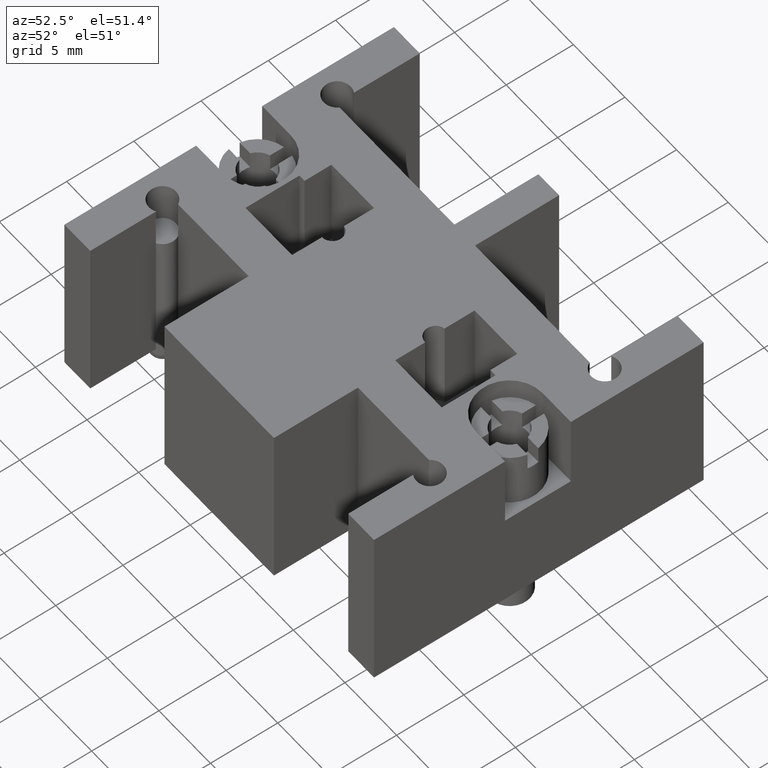
[diagram: clean part render]
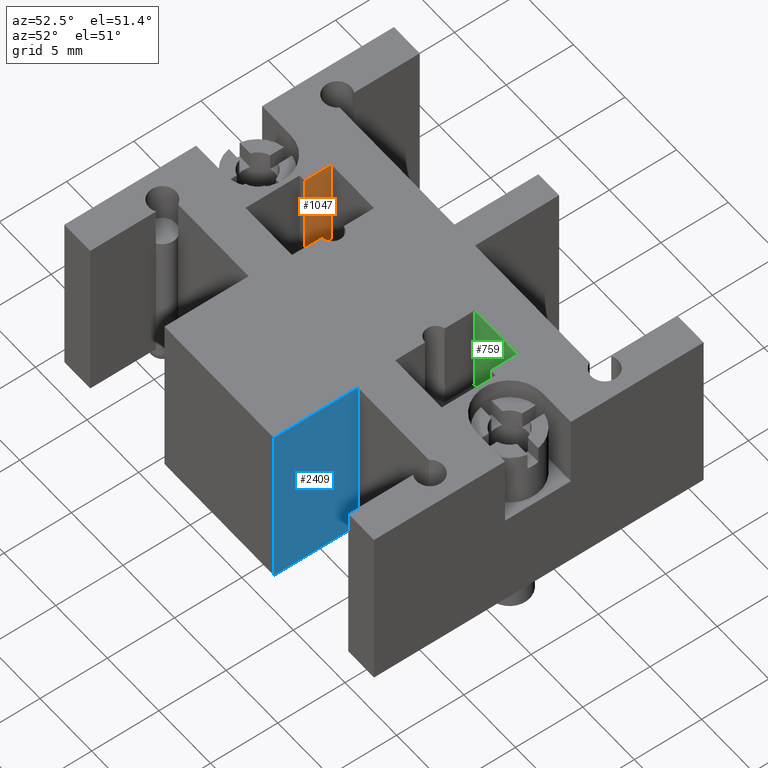
[diagram: same view with three faces highlighted in distinct colors, each labeled with its STEP entity id]
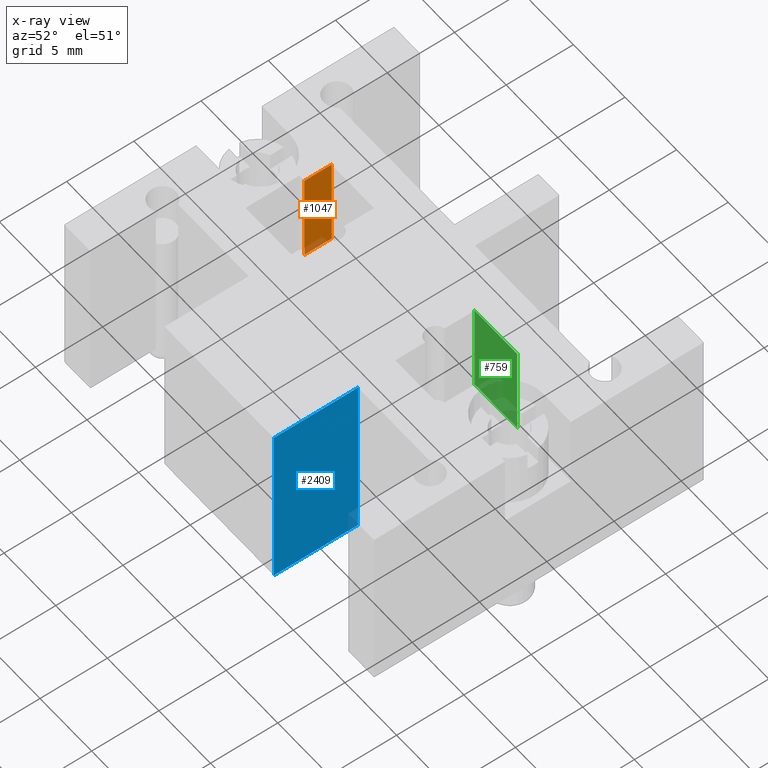
[diagram: x-ray of the same camera — body ghosted, the three highlighted faces saturated]
A machine part, auxiliary view with three faces highlighted in distinct colors.
The next image is the same camera in x-ray (body ghosted, the three faces saturated) — at least one of them is partly hidden behind the body in this view.
Their STEP definitions:

[orange] entity #1047 — the highlighted planar face has unit normal (-1, 0, 0).
#803=CARTESIAN_POINT('',(-19.052022867292344,6.614643525666462,6.000000000000002));
#804=VERTEX_POINT('',#803);
#813=CARTESIAN_POINT('',(-19.052022867292344,6.614643525666462,13.0));
#814=VERTEX_POINT('',#813);
#815=CARTESIAN_POINT('',(-19.052022867292344,6.614643525666462,13.0));
#816=DIRECTION('',(0.0,0.0,-1.0));
#817=VECTOR('',#816,6.999999999999998);
#818=LINE('',#815,#817);
#819=EDGE_CURVE('',#814,#804,#818,.T.);
#1000=CARTESIAN_POINT('',(-19.052022867292344,8.614643525666462,6.000000000000002));
#1001=VERTEX_POINT('',#1000);
#1009=CARTESIAN_POINT('',(-19.052022867292344,8.614643525666462,13.0));
#1010=VERTEX_POINT('',#1009);
#1017=CARTESIAN_POINT('',(-19.052022867292344,8.614643525666462,13.0));
#1018=DIRECTION('',(0.0,0.0,-1.0));
#1019=VECTOR('',#1018,6.999999999999998);
#1020=LINE('',#1017,#1019);
#1021=EDGE_CURVE('',#1010,#1001,#1020,.T.);
#1026=CARTESIAN_POINT('',(-19.052022867292344,8.614643525666462,13.0));
#1027=DIRECTION('',(-1.0,0.0,0.0));
#1028=DIRECTION('',(0.0,0.0,1.0));
#1029=AXIS2_PLACEMENT_3D('',#1026,#1027,#1028);
#1030=PLANE('',#1029);
#1031=CARTESIAN_POINT('',(-19.052022867292344,8.614643525666462,6.000000000000002));
#1032=DIRECTION('',(0.0,-1.0,0.0));
#1033=VECTOR('',#1032,2.000000000000001);
#1034=LINE('',#1031,#1033);
#1035=EDGE_CURVE('',#1001,#804,#1034,.T.);
#1036=ORIENTED_EDGE('',*,*,#1035,.F.);
#1037=ORIENTED_EDGE('',*,*,#1021,.F.);
#1038=CARTESIAN_POINT('',(-19.052022867292344,6.614643525666462,13.0));
#1039=DIRECTION('',(0.0,1.0,0.0));
#1040=VECTOR('',#1039,2.000000000000001);
#1041=LINE('',#1038,#1040);
#1042=EDGE_CURVE('',#814,#1010,#1041,.T.);
#1043=ORIENTED_EDGE('',*,*,#1042,.F.);
#1044=ORIENTED_EDGE('',*,*,#819,.T.);
#1045=EDGE_LOOP('',(#1036,#1037,#1043,#1044));
#1046=FACE_OUTER_BOUND('',#1045,.T.);
#1047=ADVANCED_FACE('',(#1046),#1030,.F.);

[blue] entity #2409 — the highlighted planar face has unit normal (1, 0, 0).
#1326=CARTESIAN_POINT('',(-4.752022867292340,-0.385356474333549,13.0));
#1327=VERTEX_POINT('',#1326);
#1334=CARTESIAN_POINT('',(-4.752022867292340,-0.385356474333549,0.0));
#1335=VERTEX_POINT('',#1334);
#1336=CARTESIAN_POINT('',(-4.752022867292340,-0.385356474333549,0.0));
#1337=DIRECTION('',(0.0,0.0,1.0));
#1338=VECTOR('',#1337,13.0);
#1339=LINE('',#1336,#1338);
#1340=EDGE_CURVE('',#1335,#1327,#1339,.T.);
#1436=CARTESIAN_POINT('',(-4.752022867292340,-6.635356474333531,0.0));
#1437=VERTEX_POINT('',#1436);
#1438=CARTESIAN_POINT('',(-4.752022867292340,-0.385356474333549,0.0));
#1439=DIRECTION('',(0.0,-1.0,0.0));
#1440=VECTOR('',#1439,6.249999999999982);
#1441=LINE('',#1438,#1440);
#1442=EDGE_CURVE('',#1335,#1437,#1441,.T.);
#2386=CARTESIAN_POINT('',(-4.752022867292340,-0.385356474333549,0.0));
#2387=DIRECTION('',(1.0,0.0,0.0));
#2388=DIRECTION('',(0.0,0.0,-1.0));
#2389=AXIS2_PLACEMENT_3D('',#2386,#2387,#2388);
#2390=PLANE('',#2389);
#2391=CARTESIAN_POINT('',(-4.752022867292340,-6.635356474333531,13.0));
#2392=VERTEX_POINT('',#2391);
#2393=CARTESIAN_POINT('',(-4.752022867292340,-0.385356474333549,13.0));
#2394=DIRECTION('',(0.0,-1.0,0.0));
#2395=VECTOR('',#2394,6.249999999999982);
#2396=LINE('',#2393,#2395);
#2397=EDGE_CURVE('',#1327,#2392,#2396,.T.);
#2398=ORIENTED_EDGE('',*,*,#2397,.T.);
#2399=CARTESIAN_POINT('',(-4.752022867292340,-6.635356474333531,0.0));
#2400=DIRECTION('',(0.0,0.0,1.0));
#2401=VECTOR('',#2400,13.0);
#2402=LINE('',#2399,#2401);
#2403=EDGE_CURVE('',#1437,#2392,#2402,.T.);
#2404=ORIENTED_EDGE('',*,*,#2403,.F.);
#2405=ORIENTED_EDGE('',*,*,#1442,.F.);
#2406=ORIENTED_EDGE('',*,*,#1340,.T.);
#2407=EDGE_LOOP('',(#2398,#2404,#2405,#2406));
#2408=FACE_OUTER_BOUND('',#2407,.T.);
#2409=ADVANCED_FACE('',(#2408),#2390,.T.);

[green] entity #759 — the highlighted face is a freeform B-spline surface patch.
#703=CARTESIAN_POINT('',(-5.179350140141493,8.614643525666466,6.000000000000002));
#704=VERTEX_POINT('',#703);
#711=CARTESIAN_POINT('',(-5.179350140141493,8.614643525666466,13.0));
#712=VERTEX_POINT('',#711);
#713=CARTESIAN_POINT('',(-5.179350140141493,8.614643525666466,13.0));
#714=DIRECTION('',(0.0,0.0,-1.0));
#715=VECTOR('',#714,6.999999999999998);
#716=LINE('',#713,#715);
#717=EDGE_CURVE('',#712,#704,#716,.T.);
#729=CARTESIAN_POINT('',(-5.179350140141493,8.614643525666466,6.0));
#730=CARTESIAN_POINT('',(-5.179350140141493,8.614643525666466,13.0));
#731=CARTESIAN_POINT('',(-1.052022867292331,8.614643525666464,6.0));
#732=CARTESIAN_POINT('',(-1.052022867292331,8.614643525666466,13.0));
#733=B_SPLINE_SURFACE_WITH_KNOTS('',1,1,((#729,#731),(#730,#732)),.UNSPECIFIED.,.F.,.F.,.U.,(2,2),(2,2),(0.0,7.0),(0.0,4.127327272849161),.UNSPECIFIED.);
#734=CARTESIAN_POINT('',(-1.052022867292330,8.614643525666464,6.000000000000002));
#735=VERTEX_POINT('',#734);
#736=CARTESIAN_POINT('',(-5.179350140141493,8.614643525666466,6.000000000000002));
#737=DIRECTION('',(1.0,0.0,0.0));
#738=VECTOR('',#737,4.127327272849162);
#739=LINE('',#736,#738);
#740=EDGE_CURVE('',#704,#735,#739,.T.);
#741=ORIENTED_EDGE('',*,*,#740,.T.);
#742=CARTESIAN_POINT('',(-1.052022867292330,8.614643525666464,13.0));
#743=VERTEX_POINT('',#742);
#744=CARTESIAN_POINT('',(-1.052022867292330,8.614643525666464,13.0));
#745=DIRECTION('',(0.0,0.0,-1.0));
#746=VECTOR('',#745,6.999999999999998);
#747=LINE('',#744,#746);
#748=EDGE_CURVE('',#743,#735,#747,.T.);
#749=ORIENTED_EDGE('',*,*,#748,.F.);
#750=CARTESIAN_POINT('',(-5.179350140141493,8.614643525666466,13.0));
#751=DIRECTION('',(1.0,0.0,0.0));
#752=VECTOR('',#751,4.127327272849162);
#753=LINE('',#750,#752);
#754=EDGE_CURVE('',#712,#743,#753,.T.);
#755=ORIENTED_EDGE('',*,*,#754,.F.);
#756=ORIENTED_EDGE('',*,*,#717,.T.);
#757=EDGE_LOOP('',(#741,#749,#755,#756));
#758=FACE_OUTER_BOUND('',#757,.T.);
#759=ADVANCED_FACE('',(#758),#733,.F.);